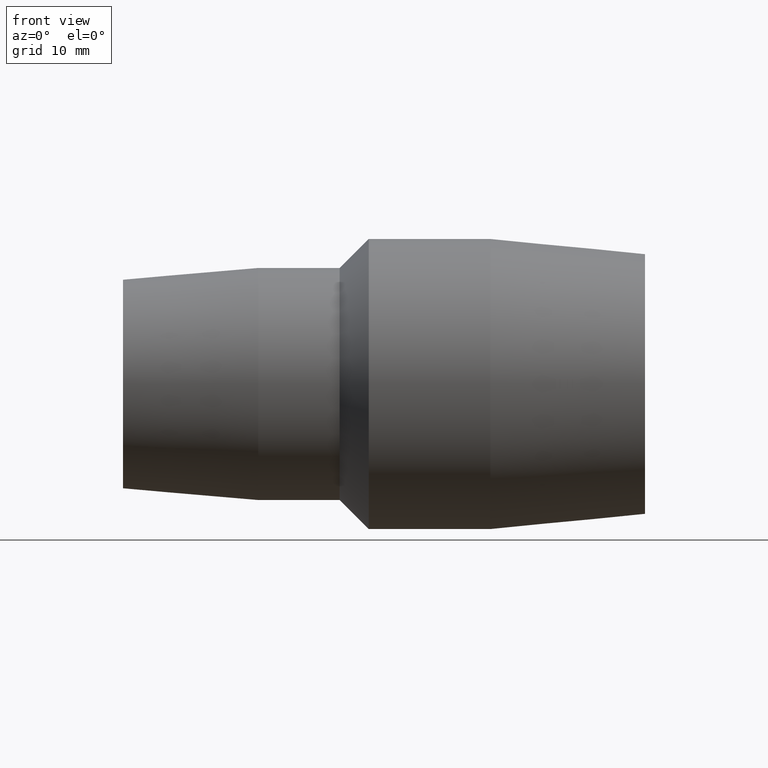
[diagram: clean part render]
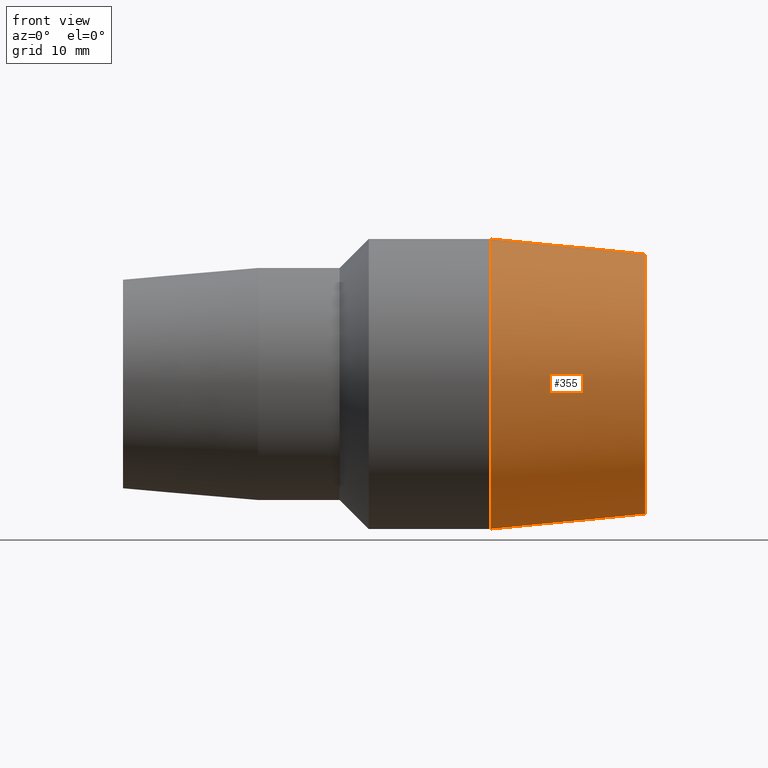
[diagram: same view with one face highlighted and labeled with its STEP entity id]
A machine part, front view. The second image highlights one B-rep face of the part: STEP entity #355.
In plain terms, the highlighted conical surface has half-angle 5.356 deg.
Its self-contained STEP definition (entity closure, byte-faithful):
#15=B_SPLINE_CURVE_WITH_KNOTS('',3,(#582,#583,#584,#585,#586,#587,#588,
#589,#590,#591,#592,#593,#594,#595,#596,#597,#598,#599,#600,#601,#602,#603,
#604,#605,#606,#607,#608,#609,#610,#611,#612,#613,#614,#615),
 .UNSPECIFIED.,.T.,.F.,(4,2,2,2,2,2,2,2,2,2,2,2,2,2,2,2,4),(0.,0.34921942886864,
0.69843885773728,1.05091588637607,1.40339291501485,1.75586994365364,2.10834697229243,
2.45756640116107,2.80678583002971,3.18980122872234,3.57281662741497,3.9445500905456,
4.31628355367624,4.68801701680687,5.0597504799375,5.44276587863013,5.82578127732276),
 .UNSPECIFIED.);
#23=CONICAL_SURFACE('',#404,21.375,5.35582504285521);
#41=FACE_BOUND('',#131,.T.);
#42=FACE_BOUND('',#132,.T.);
#85=FACE_OUTER_BOUND('',#130,.T.);
#130=EDGE_LOOP('',(#292));
#131=EDGE_LOOP('',(#293));
#132=EDGE_LOOP('',(#294));
#177=CIRCLE('',#403,22.5);
#178=CIRCLE('',#405,20.25);
#199=VERTEX_POINT('',#581);
#209=VERTEX_POINT('',#688);
#210=VERTEX_POINT('',#691);
#231=EDGE_CURVE('',#199,#199,#15,.T.);
#243=EDGE_CURVE('',#209,#209,#177,.T.);
#244=EDGE_CURVE('',#210,#210,#178,.T.);
#292=ORIENTED_EDGE('',*,*,#244,.F.);
#293=ORIENTED_EDGE('',*,*,#231,.T.);
#294=ORIENTED_EDGE('',*,*,#243,.T.);
#355=ADVANCED_FACE('',(#85,#41,#42),#23,.T.);
#403=AXIS2_PLACEMENT_3D('',#689,#497,#498);
#404=AXIS2_PLACEMENT_3D('',#690,#499,#500);
#405=AXIS2_PLACEMENT_3D('',#692,#501,#502);
#497=DIRECTION('center_axis',(1.,1.83697019872103E-16,0.));
#498=DIRECTION('ref_axis',(0.,0.,-1.));
#499=DIRECTION('center_axis',(-1.,-1.83697019872103E-16,0.));
#500=DIRECTION('ref_axis',(-1.96131485542617E-16,1.,0.));
#501=DIRECTION('center_axis',(1.,1.83697019872103E-16,0.));
#502=DIRECTION('ref_axis',(0.,0.,-1.));
#581=CARTESIAN_POINT('',(28.8235486545234,19.0732069146046,-9.58162829181871));
#582=CARTESIAN_POINT('Ctrl Pts',(28.8235486545235,19.0732069146047,-9.58162829181871));
#583=CARTESIAN_POINT('Ctrl Pts',(29.9825313738118,18.976115111369,-9.53285319212247));
#584=CARTESIAN_POINT('Ctrl Pts',(31.2063358528912,18.9967291644831,-9.24682536761442));
#585=CARTESIAN_POINT('Ctrl Pts',(33.4291365827659,19.2396148456838,-8.21323818325407));
#586=CARTESIAN_POINT('Ctrl Pts',(34.4294556444271,19.4531069172057,-7.46647970827992));
#587=CARTESIAN_POINT('Ctrl Pts',(36.0032297338311,19.864280257009,-5.7856949626841));
#588=CARTESIAN_POINT('Ctrl Pts',(36.6860853312904,20.0910025325791,-4.73022657038478));
#589=CARTESIAN_POINT('Ctrl Pts',(37.5939583517543,20.4117809913599,-2.42526711871709));
#590=CARTESIAN_POINT('Ctrl Pts',(37.8183722173292,20.5014026046254,-1.17492342879596));
#591=CARTESIAN_POINT('Ctrl Pts',(37.8183722173292,20.5014026046254,1.17492342879596));
#592=CARTESIAN_POINT('Ctrl Pts',(37.5939583517543,20.4117809913599,2.42526711871709));
#593=CARTESIAN_POINT('Ctrl Pts',(36.6860853312904,20.0910025325791,4.73022657038478));
#594=CARTESIAN_POINT('Ctrl Pts',(36.0032297338311,19.864280257009,5.7856949626841));
#595=CARTESIAN_POINT('Ctrl Pts',(34.4294556444271,19.4531069172057,7.46647970827992));
#596=CARTESIAN_POINT('Ctrl Pts',(33.4291365827659,19.2396148456838,8.21323818325407));
#597=CARTESIAN_POINT('Ctrl Pts',(31.2063358528912,18.9967291644831,9.24682536761442));
#598=CARTESIAN_POINT('Ctrl Pts',(29.9825313738118,18.976115111369,9.53285319212247));
#599=CARTESIAN_POINT('Ctrl Pts',(27.5524045210364,19.1796948492725,9.63512363804544));
#600=CARTESIAN_POINT('Ctrl Pts',(26.2221646987138,19.4374240495489,9.41229869964287));
#601=CARTESIAN_POINT('Ctrl Pts',(23.8023532209335,20.1235590168762,8.44355803872945));
#602=CARTESIAN_POINT('Ctrl Pts',(22.7099040736524,20.5427639567287,7.69833737638453));
#603=CARTESIAN_POINT('Ctrl Pts',(21.0092747943259,21.267998571969,5.9920861995273));
#604=CARTESIAN_POINT('Ctrl Pts',(20.2735656696187,21.6264979911721,4.92151343005924));
#605=CARTESIAN_POINT('Ctrl Pts',(19.2861986874747,22.1258780867772,2.54573329136532));
#606=CARTESIAN_POINT('Ctrl Pts',(19.0356845552626,22.2622795729441,1.23911154376878));
#607=CARTESIAN_POINT('Ctrl Pts',(19.0356845552626,22.2622795729441,-1.23911154376878));
#608=CARTESIAN_POINT('Ctrl Pts',(19.2861986874747,22.1258780867772,-2.54573329136531));
#609=CARTESIAN_POINT('Ctrl Pts',(20.2735656696187,21.6264979911721,-4.92151343005923));
#610=CARTESIAN_POINT('Ctrl Pts',(21.0092747943259,21.267998571969,-5.99208619952729));
#611=CARTESIAN_POINT('Ctrl Pts',(22.7099040736524,20.5427639567287,-7.69833737638453));
#612=CARTESIAN_POINT('Ctrl Pts',(23.8023532209335,20.1235590168762,-8.44355803872945));
#613=CARTESIAN_POINT('Ctrl Pts',(26.2221646987138,19.4374240495489,-9.41229869964287));
#614=CARTESIAN_POINT('Ctrl Pts',(27.5524045210364,19.1796948492725,-9.63512363804544));
#615=CARTESIAN_POINT('Ctrl Pts',(28.8235486545235,19.0732069146047,-9.58162829181871));
#688=CARTESIAN_POINT('',(16.5,22.5,0.));
#689=CARTESIAN_POINT('Origin',(16.5,1.04707301327099E-14,0.));
#690=CARTESIAN_POINT('Origin',(28.5,1.26750943711751E-14,0.));
#691=CARTESIAN_POINT('',(40.5,20.25,0.));
#692=CARTESIAN_POINT('Origin',(40.5,1.48794586096403E-14,0.));